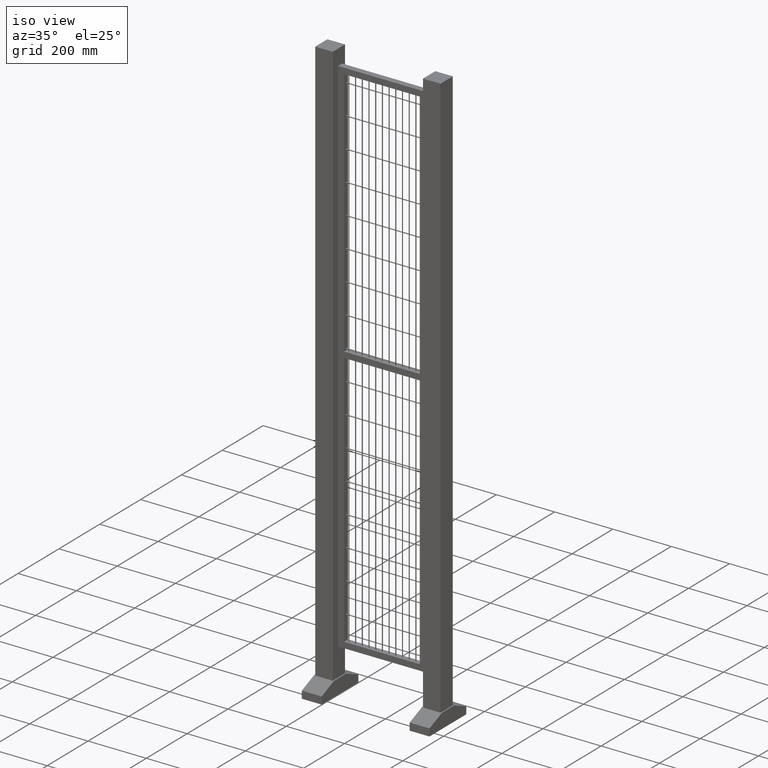
[diagram: clean part render]
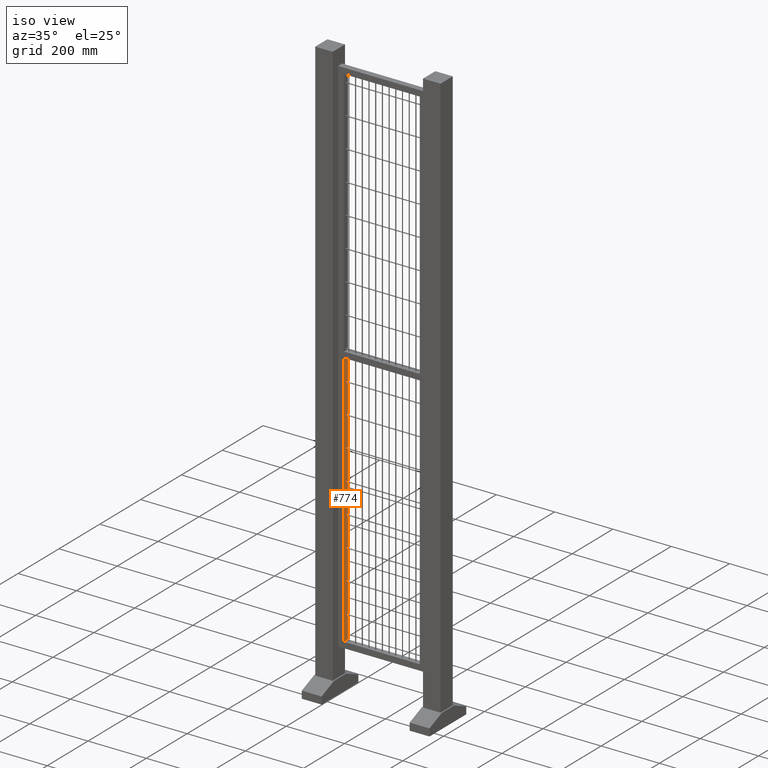
[diagram: same view with one face highlighted and labeled with its STEP entity id]
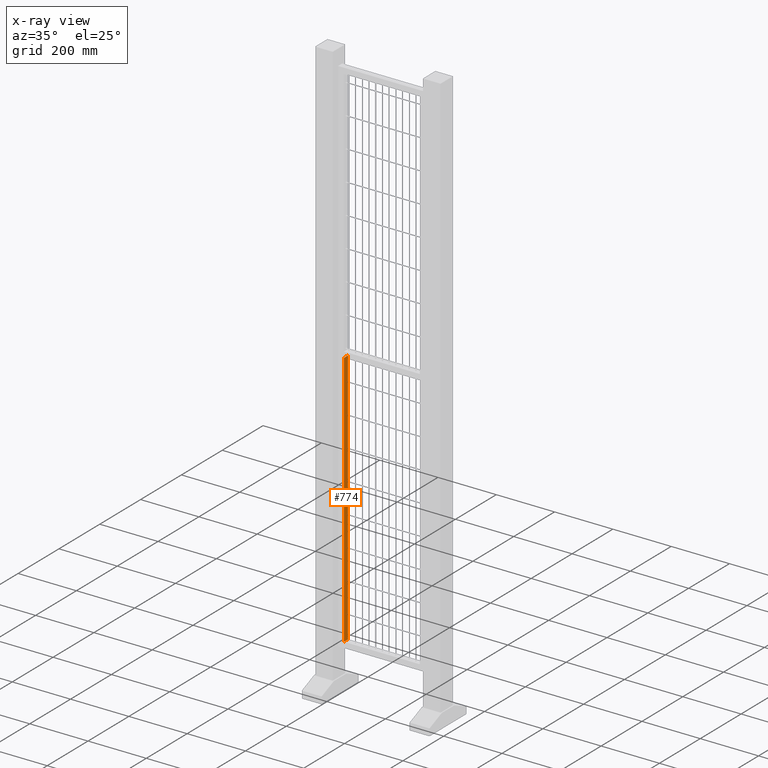
[diagram: x-ray of the same camera — body ghosted, the highlighted face saturated]
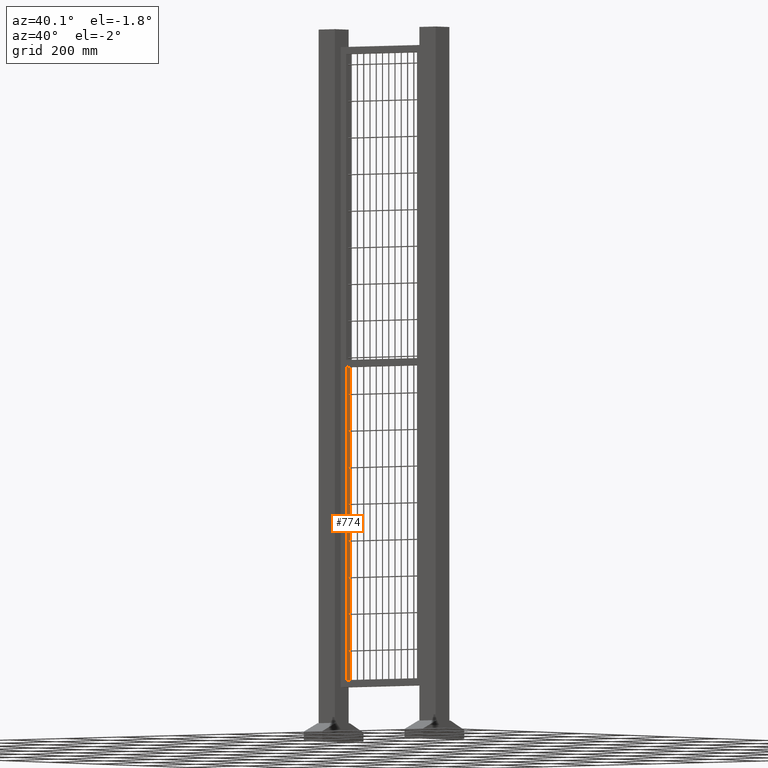
[diagram: same view with one face highlighted and labeled with its STEP entity id]
A machine part, iso view. The second image highlights one B-rep face of the part: STEP entity #774.
The next image is the same camera in x-ray: the body ghosted, the highlighted face saturated — about 0% of this face is hidden behind the body in this view.
A second angle (auxiliary view) of the same face is appended — the face is thin or edge-on in the first view.
In plain terms, the highlighted planar face has unit normal (1, 0, -0).
Its self-contained STEP definition (entity closure, byte-faithful):
#67=LINE('',#2669,#161);
#75=LINE('',#2687,#169);
#76=LINE('',#2690,#170);
#77=LINE('',#2691,#171);
#161=VECTOR('',#2241,1.);
#169=VECTOR('',#2257,1.);
#170=VECTOR('',#2258,1.);
#171=VECTOR('',#2259,1.);
#569=PLANE('',#1918);
#659=FACE_OUTER_BOUND('',#1043,.T.);
#774=ADVANCED_FACE('',(#659),#569,.T.);
#1043=EDGE_LOOP('',(#1228,#1229,#1230,#1231));
#1228=ORIENTED_EDGE('',*,*,#1631,.F.);
#1229=ORIENTED_EDGE('',*,*,#1632,.T.);
#1230=ORIENTED_EDGE('',*,*,#1622,.T.);
#1231=ORIENTED_EDGE('',*,*,#1633,.F.);
#1493=VERTEX_POINT('',#2668);
#1494=VERTEX_POINT('',#2670);
#1500=VERTEX_POINT('',#2688);
#1501=VERTEX_POINT('',#2689);
#1622=EDGE_CURVE('',#1494,#1493,#67,.T.);
#1631=EDGE_CURVE('',#1500,#1501,#75,.T.);
#1632=EDGE_CURVE('',#1500,#1494,#76,.T.);
#1633=EDGE_CURVE('',#1501,#1493,#77,.T.);
#1918=AXIS2_PLACEMENT_3D('',#2692,#2260,#2261);
#2241=DIRECTION('',(0.,1.,0.));
#2257=DIRECTION('',(0.,1.,0.));
#2258=DIRECTION('',(-6.30808536718839E-17,0.,-1.));
#2259=DIRECTION('',(-6.30808536718839E-17,0.,-1.));
#2260=DIRECTION('',(1.,0.,-6.30808536718839E-17));
#2261=DIRECTION('',(-5.55111512312578E-17,0.,-1.));
#2668=CARTESIAN_POINT('',(-130.,10.,-880.));
#2669=CARTESIAN_POINT('',(-130.,-10.,-880.));
#2670=CARTESIAN_POINT('',(-130.,-10.,-880.));
#2687=CARTESIAN_POINT('',(-130.,-10.,0.));
#2688=CARTESIAN_POINT('',(-130.,-10.,0.));
#2689=CARTESIAN_POINT('',(-130.,10.,0.));
#2690=CARTESIAN_POINT('',(-130.,-10.,880.));
#2691=CARTESIAN_POINT('',(-130.,10.,880.));
#2692=CARTESIAN_POINT('',(-130.,-10.,880.));